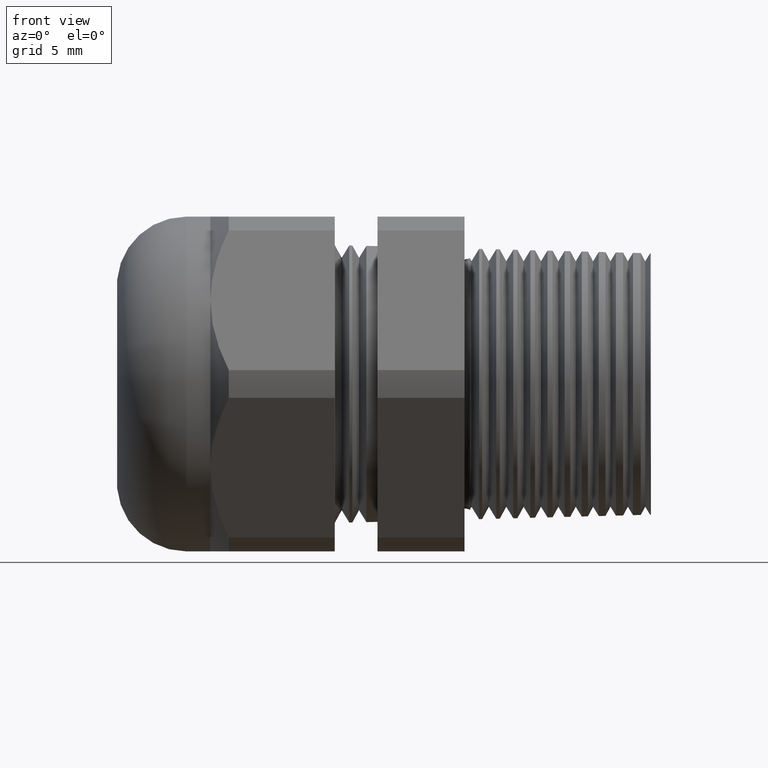
[diagram: clean part render]
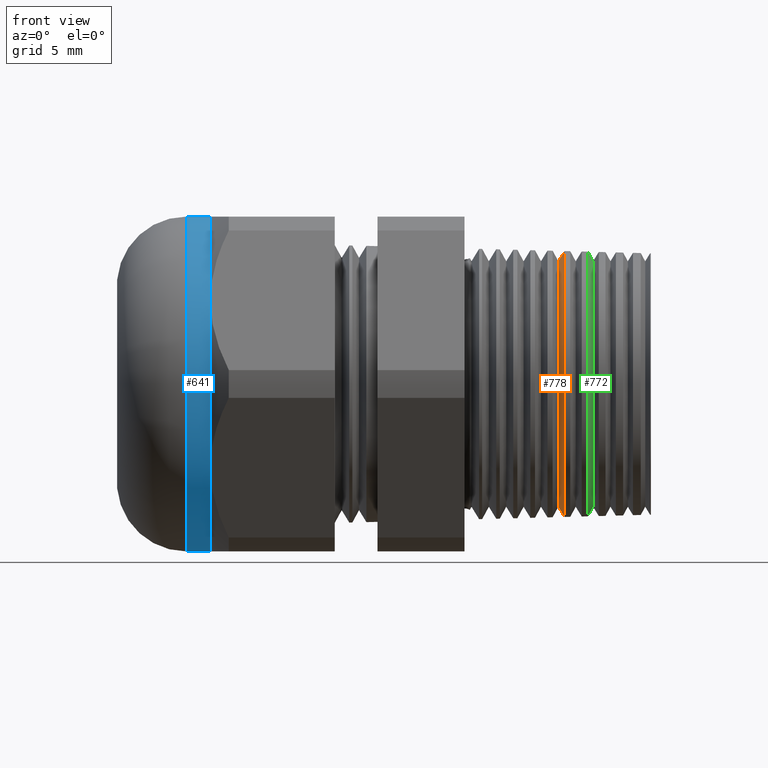
[diagram: same view with three faces highlighted in distinct colors, each labeled with its STEP entity id]
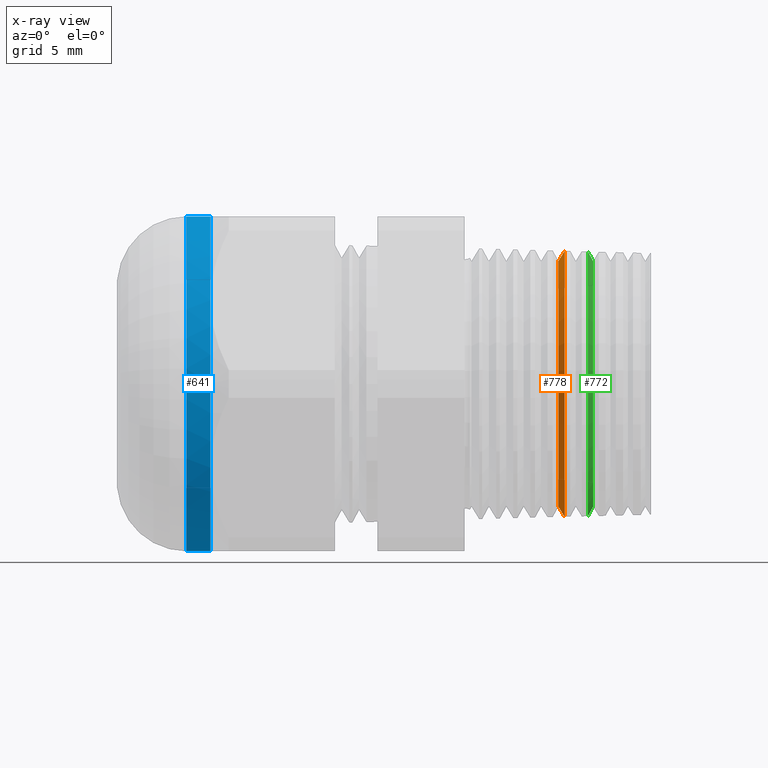
[diagram: x-ray of the same camera — body ghosted, the three highlighted faces saturated]
A machine part, front view with three faces highlighted in distinct colors.
The next image is the same camera in x-ray (body ghosted, the three faces saturated) — at least one of them is partly hidden behind the body in this view.
Their STEP definitions:

[orange] entity #778 — the highlighted conical surface has half-angle 58.5 deg.
#426 = EDGE_CURVE ( 'NONE', #478, #473, #2100, .T. ) ;
#442 = EDGE_CURVE ( 'NONE', #465, #478, #2122, .T. ) ;
#465 = VERTEX_POINT ( 'NONE', #2204 ) ;
#473 = VERTEX_POINT ( 'NONE', #2196 ) ;
#478 = VERTEX_POINT ( 'NONE', #2244 ) ;
#484 = EDGE_CURVE ( 'NONE', #487, #473, #2242, .T. ) ;
#487 = VERTEX_POINT ( 'NONE', #2227 ) ;
#724 = EDGE_CURVE ( 'NONE', #487, #465, #2676, .T. ) ;
#726 = EDGE_LOOP ( 'NONE', ( #779, #780, #781, #782 ) ) ;
#778 = ADVANCED_FACE ( 'NONE', ( #2791 ), #2790, .T. ) ;
#779 = ORIENTED_EDGE ( 'NONE', *, *, #484, .F. ) ;
#780 = ORIENTED_EDGE ( 'NONE', *, *, #724, .T. ) ;
#781 = ORIENTED_EDGE ( 'NONE', *, *, #442, .T. ) ;
#782 = ORIENTED_EDGE ( 'NONE', *, *, #426, .T. ) ;
#2096 = DIRECTION ( 'NONE',  ( 0.0000000000000000000, 0.0000000000000000000, -1.000000000000000000 ) ) ;
#2097 = DIRECTION ( 'NONE',  ( -1.000000000000000000, 0.0000000000000000000, 0.0000000000000000000 ) ) ;
#2098 = CARTESIAN_POINT ( 'NONE',  ( 0.006829030549054509100, 0.0000000000000000000, 0.0000000000000000000 ) ) ;
#2099 = AXIS2_PLACEMENT_3D ( 'NONE', #2098, #2097, #2096 ) ;
#2100 = CIRCLE ( 'NONE', #2099, 0.4209405075251938000 ) ;
#2122 = LINE ( 'NONE', #2181, #2180 ) ;
#2179 = DIRECTION ( 'NONE',  ( 0.5224985647159459100, 0.0000000000000000000, -0.8526401643540939500 ) ) ;
#2180 = VECTOR ( 'NONE', #2179, 39.37007874015748100 ) ;
#2181 = CARTESIAN_POINT ( 'NONE',  ( -0.01296098090543437700, 0.0000000000000000000, -0.3886461439448840000 ) ) ;
#2196 = CARTESIAN_POINT ( 'NONE',  ( 0.006829030549054509100, 0.0000000000000000000, 0.4209405075251938500 ) ) ;
#2204 = CARTESIAN_POINT ( 'NONE',  ( -0.01296098090543437700, 4.963359514917031700E-017, -0.3886461439448840000 ) ) ;
#2227 = CARTESIAN_POINT ( 'NONE',  ( -0.01296098090543437700, 0.0000000000000000000, 0.3886461439448840000 ) ) ;
#2239 = DIRECTION ( 'NONE',  ( 0.5224985647159459100, 1.044183048100714500E-016, 0.8526401643540939500 ) ) ;
#2240 = VECTOR ( 'NONE', #2239, 39.37007874015748100 ) ;
#2241 = CARTESIAN_POINT ( 'NONE',  ( -0.01296098090543437700, 4.759542561830636400E-017, 0.3886461439448840000 ) ) ;
#2242 = LINE ( 'NONE', #2241, #2240 ) ;
#2244 = CARTESIAN_POINT ( 'NONE',  ( 0.006829030549054509100, 5.155034451721909800E-017, -0.4209405075251938500 ) ) ;
#2676 = CIRCLE ( 'NONE', #2734, 0.3886461439448840000 ) ;
#2731 = DIRECTION ( 'NONE',  ( 0.0000000000000000000, 0.0000000000000000000, -1.000000000000000000 ) ) ;
#2732 = DIRECTION ( 'NONE',  ( 1.000000000000000000, 0.0000000000000000000, 0.0000000000000000000 ) ) ;
#2733 = CARTESIAN_POINT ( 'NONE',  ( -0.01296098090543437700, 0.0000000000000000000, 0.0000000000000000000 ) ) ;
#2734 = AXIS2_PLACEMENT_3D ( 'NONE', #2733, #2732, #2731 ) ;
#2785 = DIRECTION ( 'NONE',  ( 0.0000000000000000000, 0.0000000000000000000, -1.000000000000000000 ) ) ;
#2786 = DIRECTION ( 'NONE',  ( 1.000000000000000000, 0.0000000000000000000, 0.0000000000000000000 ) ) ;
#2787 = CARTESIAN_POINT ( 'NONE',  ( -0.01296098090543437700, 0.0000000000000000000, 0.0000000000000000000 ) ) ;
#2788 = AXIS2_PLACEMENT_3D ( 'NONE', #2787, #2786, #2785 ) ;
#2790 = CONICAL_SURFACE ( 'NONE', #2788, 0.3886461439448840000, 1.021017612416686300 ) ;
#2791 = FACE_OUTER_BOUND ( 'NONE', #726, .T. ) ;

[blue] entity #641 — the highlighted cylindrical surface (partial cylindrical patch) has radius 13.462 mm, axis along (1, 0, 0).
#85 = VERTEX_POINT ( 'NONE', #1443 ) ;
#88 = VERTEX_POINT ( 'NONE', #1431 ) ;
#290 = EDGE_CURVE ( 'NONE', #85, #292, #1809, .T. ) ;
#292 = VERTEX_POINT ( 'NONE', #1860 ) ;
#372 = EDGE_CURVE ( 'NONE', #88, #3727, #2024, .T. ) ;
#563 = VERTEX_POINT ( 'NONE', #2351 ) ;
#618 = VERTEX_POINT ( 'NONE', #2502 ) ;
#641 = ADVANCED_FACE ( 'NONE', ( #2561 ), #2560, .T. ) ;
#642 = EDGE_LOOP ( 'NONE', ( #643, #644, #700, #701, #703, #705 ) ) ;
#643 = ORIENTED_EDGE ( 'NONE', *, *, #290, .F. ) ;
#644 = ORIENTED_EDGE ( 'NONE', *, *, #699, .T. ) ;
#699 = EDGE_CURVE ( 'NONE', #85, #88, #2655, .T. ) ;
#700 = ORIENTED_EDGE ( 'NONE', *, *, #372, .T. ) ;
#701 = ORIENTED_EDGE ( 'NONE', *, *, #702, .F. ) ;
#702 = EDGE_CURVE ( 'NONE', #618, #3727, #2646, .T. ) ;
#703 = ORIENTED_EDGE ( 'NONE', *, *, #704, .F. ) ;
#704 = EDGE_CURVE ( 'NONE', #563, #618, #2705, .T. ) ;
#705 = ORIENTED_EDGE ( 'NONE', *, *, #706, .F. ) ;
#706 = EDGE_CURVE ( 'NONE', #292, #563, #2700, .T. ) ;
#1431 = CARTESIAN_POINT ( 'NONE',  ( -1.190910976997933600, 0.0000000000000000000, -0.5300000000000001400 ) ) ;
#1443 = CARTESIAN_POINT ( 'NONE',  ( -1.190910976997933600, 6.490628035480972400E-017, 0.5300000000000001400 ) ) ;
#1809 = LINE ( 'NONE', #1868, #1867 ) ;
#1860 = CARTESIAN_POINT ( 'NONE',  ( -1.114724409448818900, 0.0000000000000000000, 0.5300000000000001400 ) ) ;
#1866 = DIRECTION ( 'NONE',  ( 1.000000000000000000, 0.0000000000000000000, 0.0000000000000000000 ) ) ;
#1867 = VECTOR ( 'NONE', #1866, 39.37007874015748100 ) ;
#1868 = CARTESIAN_POINT ( 'NONE',  ( 0.0000000000000000000, 6.490628035480972400E-017, 0.5300000000000001400 ) ) ;
#2021 = DIRECTION ( 'NONE',  ( 1.000000000000000000, 0.0000000000000000000, 0.0000000000000000000 ) ) ;
#2022 = VECTOR ( 'NONE', #2021, 39.37007874015748100 ) ;
#2023 = CARTESIAN_POINT ( 'NONE',  ( 0.0000000000000000000, 0.0000000000000000000, -0.5300000000000001400 ) ) ;
#2024 = LINE ( 'NONE', #2023, #2022 ) ;
#2351 = CARTESIAN_POINT ( 'NONE',  ( -1.114724409448818900, -0.4589934640057526900, 0.2649999999999999000 ) ) ;
#2502 = CARTESIAN_POINT ( 'NONE',  ( -1.114724409448818900, -0.4589934640057527500, -0.2650000000000001200 ) ) ;
#2555 = DIRECTION ( 'NONE',  ( 0.0000000000000000000, 0.0000000000000000000, -1.000000000000000000 ) ) ;
#2556 = DIRECTION ( 'NONE',  ( 1.000000000000000000, 0.0000000000000000000, 0.0000000000000000000 ) ) ;
#2557 = CARTESIAN_POINT ( 'NONE',  ( 0.0000000000000000000, 0.0000000000000000000, 0.0000000000000000000 ) ) ;
#2558 = AXIS2_PLACEMENT_3D ( 'NONE', #2557, #2556, #2555 ) ;
#2560 = CYLINDRICAL_SURFACE ( 'NONE', #2558, 0.5300000000000001400 ) ;
#2561 = FACE_OUTER_BOUND ( 'NONE', #642, .T. ) ;
#2642 = DIRECTION ( 'NONE',  ( 0.0000000000000000000, 0.0000000000000000000, -1.000000000000000000 ) ) ;
#2643 = DIRECTION ( 'NONE',  ( 1.000000000000000000, 0.0000000000000000000, 0.0000000000000000000 ) ) ;
#2644 = CARTESIAN_POINT ( 'NONE',  ( -1.114724409448818900, 0.0000000000000000000, 0.0000000000000000000 ) ) ;
#2645 = AXIS2_PLACEMENT_3D ( 'NONE', #2644, #2643, #2642 ) ;
#2646 = CIRCLE ( 'NONE', #2645, 0.5300000000000001400 ) ;
#2647 = DIRECTION ( 'NONE',  ( 0.0000000000000000000, 0.0000000000000000000, 1.000000000000000000 ) ) ;
#2648 = DIRECTION ( 'NONE',  ( 1.000000000000000000, 0.0000000000000000000, 0.0000000000000000000 ) ) ;
#2649 = CARTESIAN_POINT ( 'NONE',  ( -1.190910976997933600, 0.0000000000000000000, 0.0000000000000000000 ) ) ;
#2650 = AXIS2_PLACEMENT_3D ( 'NONE', #2649, #2648, #2647 ) ;
#2655 = CIRCLE ( 'NONE', #2650, 0.5300000000000001400 ) ;
#2696 = DIRECTION ( 'NONE',  ( 0.0000000000000000000, 0.0000000000000000000, -1.000000000000000000 ) ) ;
#2697 = DIRECTION ( 'NONE',  ( 1.000000000000000000, 0.0000000000000000000, 0.0000000000000000000 ) ) ;
#2698 = CARTESIAN_POINT ( 'NONE',  ( -1.114724409448818900, 0.0000000000000000000, 0.0000000000000000000 ) ) ;
#2699 = AXIS2_PLACEMENT_3D ( 'NONE', #2698, #2697, #2696 ) ;
#2700 = CIRCLE ( 'NONE', #2699, 0.5300000000000001400 ) ;
#2701 = DIRECTION ( 'NONE',  ( 0.0000000000000000000, 0.0000000000000000000, -1.000000000000000000 ) ) ;
#2702 = DIRECTION ( 'NONE',  ( 1.000000000000000000, 0.0000000000000000000, 0.0000000000000000000 ) ) ;
#2703 = CARTESIAN_POINT ( 'NONE',  ( -1.114724409448818900, 0.0000000000000000000, 0.0000000000000000000 ) ) ;
#2704 = AXIS2_PLACEMENT_3D ( 'NONE', #2703, #2702, #2701 ) ;
#2705 = CIRCLE ( 'NONE', #2704, 0.5300000000000001400 ) ;
#3592 = CARTESIAN_POINT ( 'NONE',  ( -1.114724409448818900, 0.0000000000000000000, -0.5300000000000001400 ) ) ;
#3727 = VERTEX_POINT ( 'NONE', #3592 ) ;

[green] entity #772 — the highlighted conical surface has half-angle 61.5 deg.
#156 = VERTEX_POINT ( 'NONE', #1552 ) ;
#160 = VERTEX_POINT ( 'NONE', #1599 ) ;
#175 = EDGE_CURVE ( 'NONE', #450, #160, #1642, .T. ) ;
#450 = VERTEX_POINT ( 'NONE', #2166 ) ;
#458 = EDGE_CURVE ( 'NONE', #472, #156, #2164, .T. ) ;
#472 = VERTEX_POINT ( 'NONE', #2197 ) ;
#772 = ADVANCED_FACE ( 'NONE', ( #2490 ), #2800, .T. ) ;
#773 = EDGE_LOOP ( 'NONE', ( #774, #775, #826, #827 ) ) ;
#774 = ORIENTED_EDGE ( 'NONE', *, *, #175, .F. ) ;
#775 = ORIENTED_EDGE ( 'NONE', *, *, #776, .F. ) ;
#776 = EDGE_CURVE ( 'NONE', #472, #450, #2795, .T. ) ;
#826 = ORIENTED_EDGE ( 'NONE', *, *, #458, .T. ) ;
#827 = ORIENTED_EDGE ( 'NONE', *, *, #3728, .T. ) ;
#1552 = CARTESIAN_POINT ( 'NONE',  ( 0.08055279978709727100, 0.0000000000000000000, 0.4190099826861420900 ) ) ;
#1599 = CARTESIAN_POINT ( 'NONE',  ( 0.08055279978709727100, 5.134533836274604300E-017, -0.4190099826861420900 ) ) ;
#1639 = DIRECTION ( 'NONE',  ( -0.4771587602596058500, 1.076240564057396400E-016, -0.8788171126619667200 ) ) ;
#1640 = VECTOR ( 'NONE', #1639, 39.37007874015748100 ) ;
#1641 = CARTESIAN_POINT ( 'NONE',  ( 0.07500000000000002500, 5.256636785327700000E-017, -0.4292369676699906400 ) ) ;
#1642 = LINE ( 'NONE', #1641, #1640 ) ;
#2161 = DIRECTION ( 'NONE',  ( -0.4771587602596058500, 0.0000000000000000000, 0.8788171126619667200 ) ) ;
#2162 = VECTOR ( 'NONE', #2161, 39.37007874015748100 ) ;
#2163 = CARTESIAN_POINT ( 'NONE',  ( 0.07500000000000002500, 0.0000000000000000000, 0.4292369676699906400 ) ) ;
#2164 = LINE ( 'NONE', #2163, #2162 ) ;
#2166 = CARTESIAN_POINT ( 'NONE',  ( 0.09703901909456560900, 4.945467451452177100E-017, -0.3886461439448840000 ) ) ;
#2197 = CARTESIAN_POINT ( 'NONE',  ( 0.09703901909456560900, 0.0000000000000000000, 0.3886461439448840000 ) ) ;
#2490 = FACE_OUTER_BOUND ( 'NONE', #773, .T. ) ;
#2792 = DIRECTION ( 'NONE',  ( 0.0000000000000000000, 0.0000000000000000000, -1.000000000000000000 ) ) ;
#2793 = DIRECTION ( 'NONE',  ( 1.000000000000000000, 0.0000000000000000000, 0.0000000000000000000 ) ) ;
#2794 = AXIS2_PLACEMENT_3D ( 'NONE', #2801, #2793, #2792 ) ;
#2795 = CIRCLE ( 'NONE', #2794, 0.3886461439448840000 ) ;
#2796 = DIRECTION ( 'NONE',  ( 0.0000000000000000000, 0.0000000000000000000, 1.000000000000000000 ) ) ;
#2797 = DIRECTION ( 'NONE',  ( -1.000000000000000000, 0.0000000000000000000, 0.0000000000000000000 ) ) ;
#2798 = CARTESIAN_POINT ( 'NONE',  ( 0.07500000000000002500, 0.0000000000000000000, 0.0000000000000000000 ) ) ;
#2799 = AXIS2_PLACEMENT_3D ( 'NONE', #2798, #2797, #2796 ) ;
#2800 = CONICAL_SURFACE ( 'NONE', #2799, 0.4292369676699906400, 1.073377489976515600 ) ;
#2801 = CARTESIAN_POINT ( 'NONE',  ( 0.09703901909456560900, 0.0000000000000000000, 0.0000000000000000000 ) ) ;
#3587 = DIRECTION ( 'NONE',  ( 0.0000000000000000000, 0.0000000000000000000, 1.000000000000000000 ) ) ;
#3588 = DIRECTION ( 'NONE',  ( 1.000000000000000000, 0.0000000000000000000, 0.0000000000000000000 ) ) ;
#3589 = CARTESIAN_POINT ( 'NONE',  ( 0.08055279978709727100, 0.0000000000000000000, 0.0000000000000000000 ) ) ;
#3590 = AXIS2_PLACEMENT_3D ( 'NONE', #3589, #3588, #3587 ) ;
#3591 = CIRCLE ( 'NONE', #3590, 0.4190099826861420900 ) ;
#3728 = EDGE_CURVE ( 'NONE', #156, #160, #3591, .T. ) ;